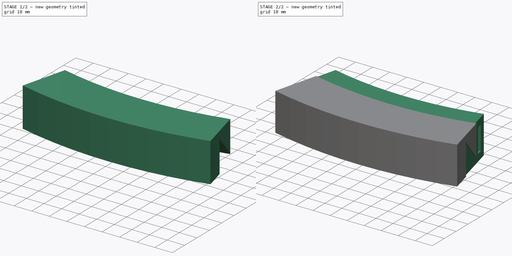
[diagram: build sequence overview — one tinted view per stage of 2, left to right]
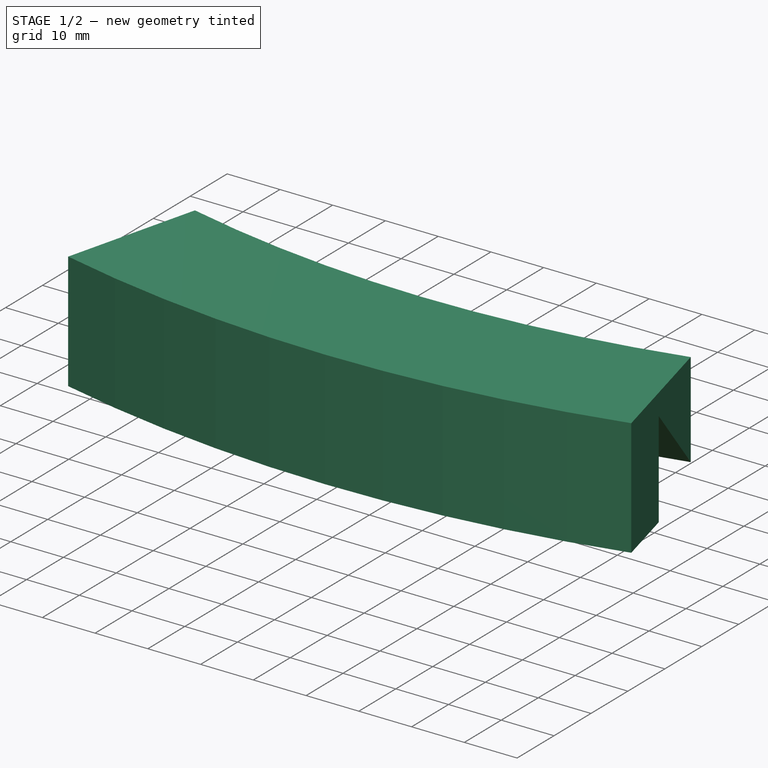
[diagram: stage 1 of 2 — iso view after this stage's code; geometry added in this stage tinted green]
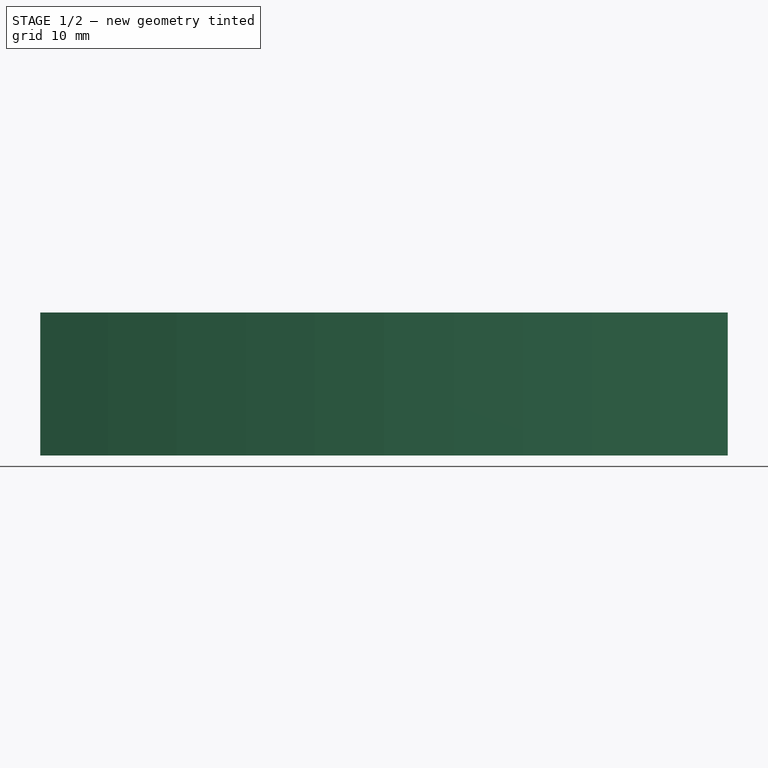
[diagram: stage 1 of 2 — front view after this stage's code; geometry added in this stage tinted green]
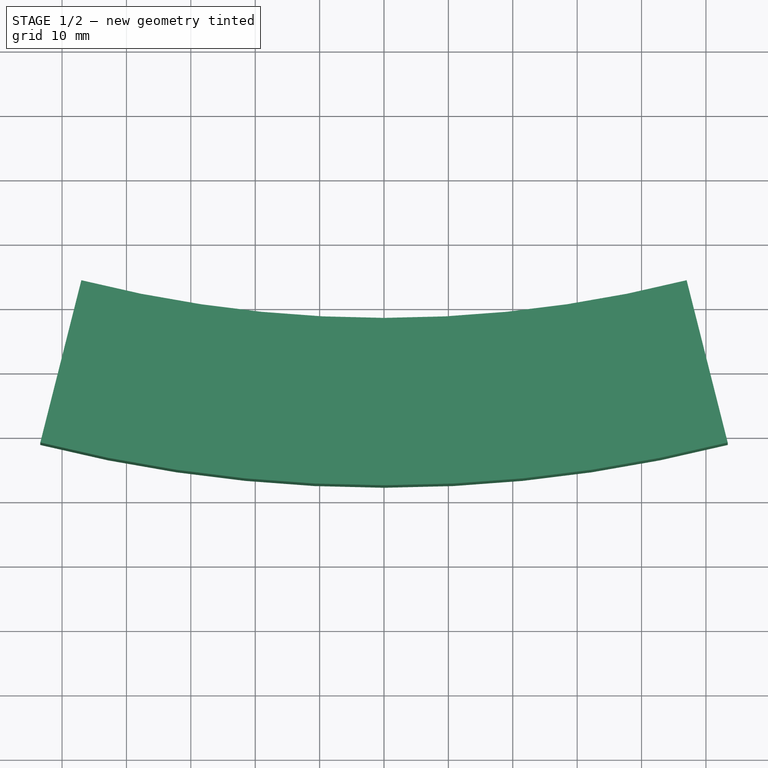
[diagram: stage 1 of 2 — top view after this stage's code; geometry added in this stage tinted green]
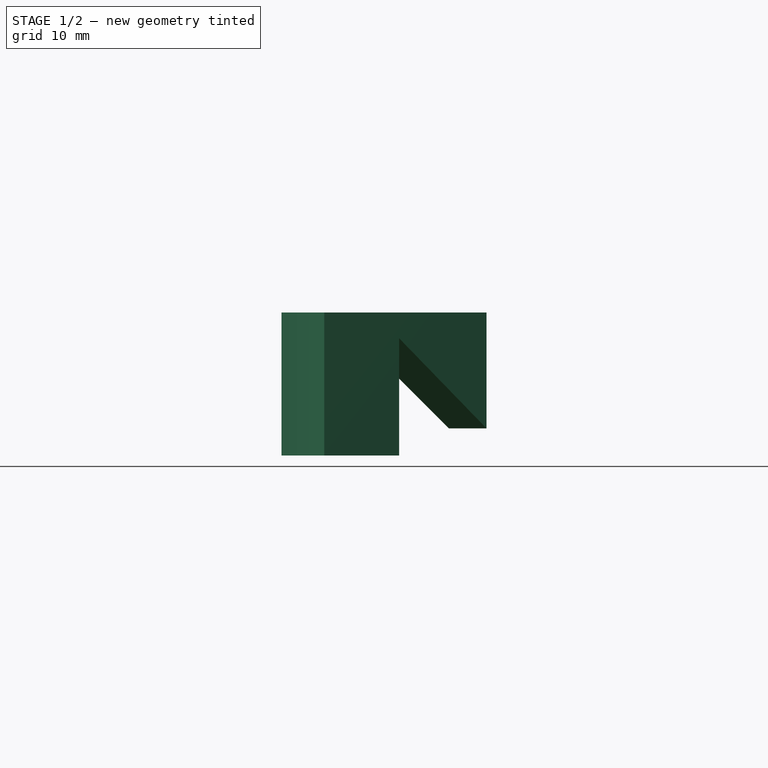
[diagram: stage 1 of 2 — right view after this stage's code; geometry added in this stage tinted green]
FCSTD DOCUMENT  (FreeCAD 0.22R37841 (Git))
Label: v1
License: All rights reserved
LicenseURL: http://en.wikipedia.org/wiki/All_rights_reserved
objects: Sketcher::SketchObject×4, PartDesign::Revolution×2, PartDesign::Pocket×2, PartDesign::Body×2, Spreadsheet::Sheet×1
note: 14 computed .brp shape members not serialized (recipe doc carries the construction recipe); baked Part::Feature solids carry a one-line shape summary decoded from their .brp

FEATURE [PartDesign::Body] Body  label="ChairMount"
  AllowCompound = false
  Group = -> [Sketch,Sketch001,Revolution,Pocket]
  Origin = -> Origin
  Tip = -> Pocket
FEATURE [Sketcher::SketchObject] Sketch002  label="ExtMountRevSketch"
  AttachmentSupport = -> [YZ_Plane001]
  FullyConstrained = true
  MapMode = 5
  Placement = pos=(0,0,0) rot=(0.57735,0.57735,0.57735;2.0944rad)
  expr: Constraints[12] = <<$params>>.mount_base_rad_distance
  expr: Constraints[13] = <<$params>>.mount_thickness * 2 + <<$params>>.mount_tie_cut_width + <<$params>>.tol
  expr: Constraints[14] = <<$params>>.mount_cleat_size
  expr: Constraints[22] = <<$params>>.mount_thickness + <<$params>>.tol * 2
  expr: Constraints[24] = <<$params>>.mount_thickness
  expr: Constraints[25] = <<$params>>.mount_ext_thickness
  sketch-geometry (9):
    g0: LineSegment StartX=-205.7 StartY=18.2 StartZ=0 EndX=-191.7 EndY=4.2 EndZ=0
    g1: LineSegment StartX=-205.7 StartY=18.2 StartZ=0 EndX=-205.7 EndY=0 EndZ=0
    g2: LineSegment StartX=-205.7 StartY=0 StartZ=0 EndX=-217.7 EndY=0 EndZ=0
    g3: LineSegment StartX=-217.7 StartY=0 StartZ=0 EndX=-217.7 EndY=22.2 EndZ=0
    g4: LineSegment StartX=-217.7 StartY=22.2 StartZ=0 EndX=-191.7 EndY=22.2 EndZ=0
    g5: LineSegment StartX=-205.7 StartY=18.2 StartZ=0 EndX=-191.7 EndY=18.2 EndZ=0
    g6: LineSegment StartX=0 StartY=0 StartZ=0 EndX=-180 EndY=0 EndZ=0
    g7: LineSegment StartX=-191.7 StartY=4.2 StartZ=0 EndX=-191.7 EndY=18.2 EndZ=0
    g8: LineSegment StartX=-191.7 StartY=22.2 StartZ=0 EndX=-191.7 EndY=18.2 EndZ=0
  constraints (26):
    c: Coincident(g1,g0)
    c: Vertical(g1)
    c: Coincident(g2,g1)
    c: Horizontal(g2)
    c: Coincident(g3,g2)
    c: Vertical(g3)
    c: Coincident(g4,g3)
    c: Horizontal(g4)
    c: Coincident(g5,g0)
    c: Horizontal(g5)
    c: Coincident(g6,g-1)
    c: Horizontal(g6)
    c: DistanceX(g6,g6) = 180
    c: DistanceX(g0,g6) = 11.7
    c: DistanceX(g5,g5) = 14
    c: Coincident(g7,g0)
    c: Coincident(g7,g5)
    c: Vertical(g7)
    c: Coincident(g8,g4)
    c: Coincident(g8,g5)
    c: Vertical(g8)
    c: Equal(g5,g7)
    c: DistanceY(g-1,g0) = 4.2
    c: PointOnObject(g1,g-1)
    c: DistanceY(g8,g8) = 4
    c: DistanceX(g2,g2) = 12
FEATURE [PartDesign::Revolution] Revolution001  label="ExtMountRev"
  Angle = 360
  Angle2 = 60
  Axis = (0,0,1)
  Base = (0,0,0)
  Placement = pos=(0,0,0) rot=(1,1,1;2.0944rad)
  Profile = -> Sketch002
  ReferenceAxis = -> Sketch002 [V_Axis]
  Suppressed = false
  Type = 0
FEATURE [Sketcher::SketchObject] Sketch003  label="ExtMountCutSketch"
  AttachmentSupport = -> [XY_Plane001]
  ExternalGeometry = -> [Sketch002]
  FullyConstrained = true
  MapMode = 5
  expr: Constraints[14] = <<$params>>.mount_ext_width
  sketch-geometry (8):
    g0: ArcOfCircle CenterX=0 CenterY=0 CenterZ=0 NormalX=0 NormalY=0 NormalZ=1 AngleXU=0 Radius=191.7 StartAngle=4.96009 EndAngle=10.7479
    g1: ArcOfCircle CenterX=0 CenterY=0 CenterZ=0 NormalX=0 NormalY=0 NormalZ=1 AngleXU=0 Radius=217.7 StartAngle=4.96009 EndAngle=10.7479
    g2: LineSegment StartX=0 StartY=0 StartZ=0 EndX=-53.3745 EndY=-211.056 EndZ=0
    g3: LineSegment StartX=0 StartY=0 StartZ=0 EndX=53.3745 EndY=-211.056 EndZ=0
    g4: GeomPoint X=-47 Y=-185.849 Z=0
    g5: GeomPoint X=47 Y=-185.849 Z=0
    g6: LineSegment StartX=47 StartY=-185.849 StartZ=0 EndX=0 EndY=-185.849 EndZ=0
    g7: LineSegment StartX=0 StartY=-185.849 StartZ=0 EndX=-47 EndY=-185.849 EndZ=0
  constraints (19):
    c: Coincident(g0,g-1)
    c: Coincident(g1,g0)
    c: PointOnObject(g-3,g0)
    c: PointOnObject(g-4,g1)
    c: Coincident(g2,g0)
    c: Coincident(g3,g0)
    c: PointOnObject(g5,g3)
    c: PointOnObject(g4,g2)
    c: Coincident(g6,g5)
    c: PointOnObject(g6,g-2)
    c: Horizontal(g6)
    c: Coincident(g7,g6)
    c: Coincident(g7,g4)
    c: Horizontal(g7)
    c: DistanceX(g4,g5) = 94
    c: Coincident(g0,g7)
    c: Coincident(g0,g6)
    c: Coincident(g1,g2)
    c: Coincident(g1,g3)
FEATURE [PartDesign::Pocket] Pocket001  label="ExtMountCut"
  BaseFeature = -> Revolution001
  Direction = (0,0,-1)
  Length = 5
  Length2 = 5
  Placement = pos=(0,0,0) rot=(1,1,1;2.0944rad)
  Profile = -> Sketch003
  ReferenceAxis = -> Sketch003 [N_Axis]
  Reversed = true
  Suppressed = false
  Type = 1
FEATURE [PartDesign::Body] Body001  label="ExtMount"
  AllowCompound = false
  Group = -> [Sketch002,Revolution001,Sketch003,Pocket001]
  Origin = -> Origin001
  Tip = -> Pocket001
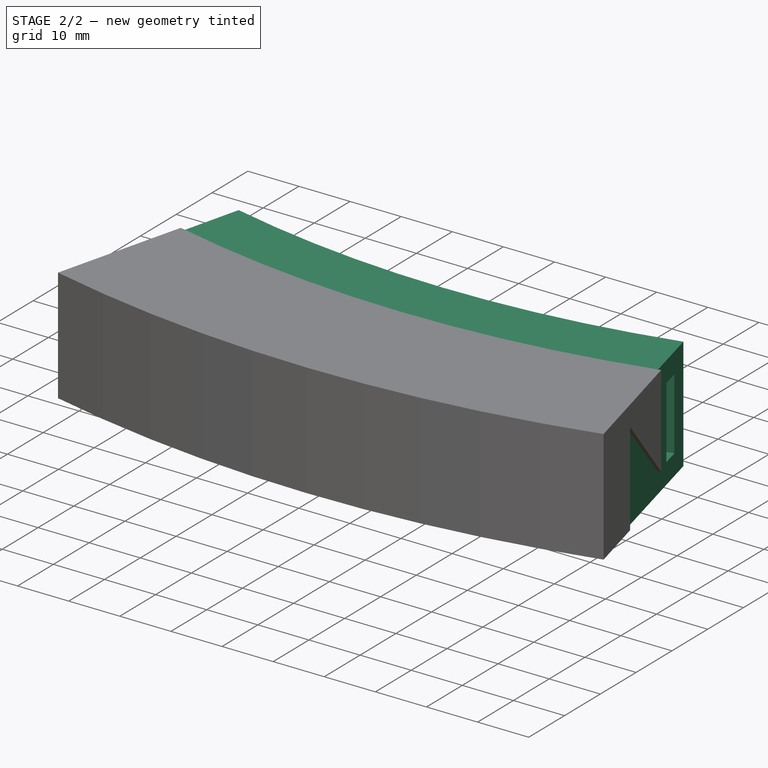
[diagram: stage 2 of 2 — iso view after this stage's code; geometry added in this stage tinted green]
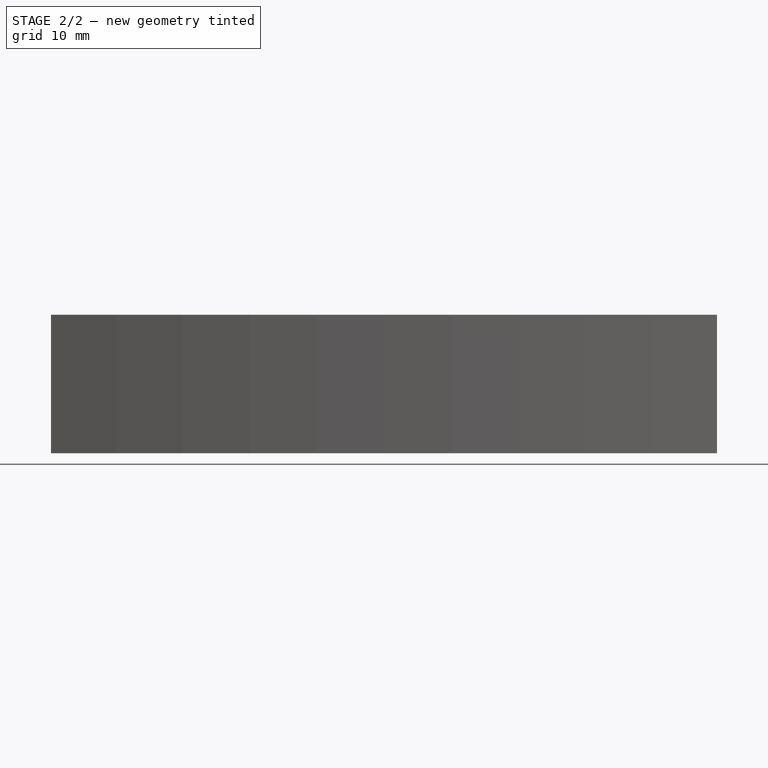
[diagram: stage 2 of 2 — front view after this stage's code; geometry added in this stage tinted green]
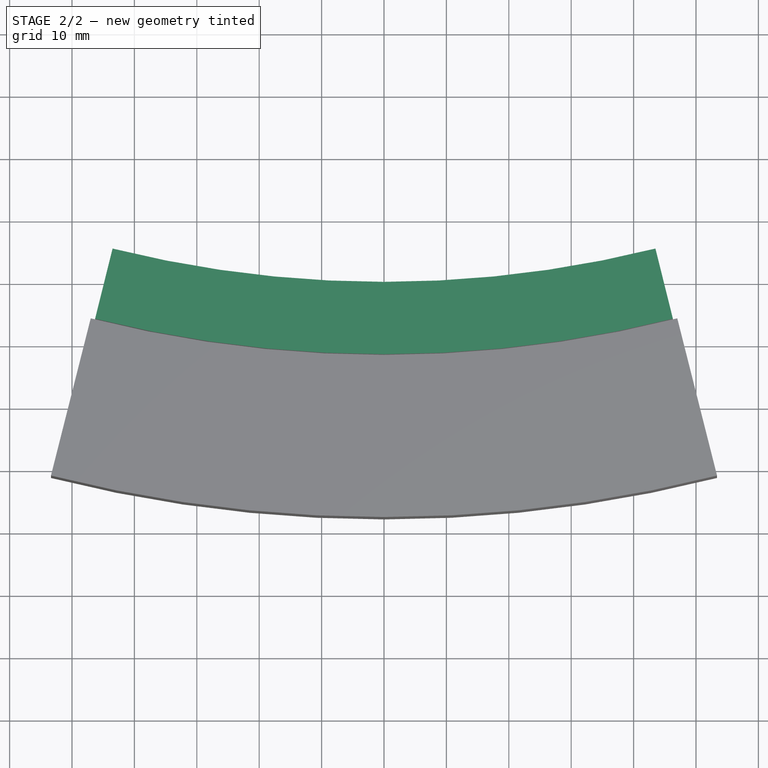
[diagram: stage 2 of 2 — top view after this stage's code; geometry added in this stage tinted green]
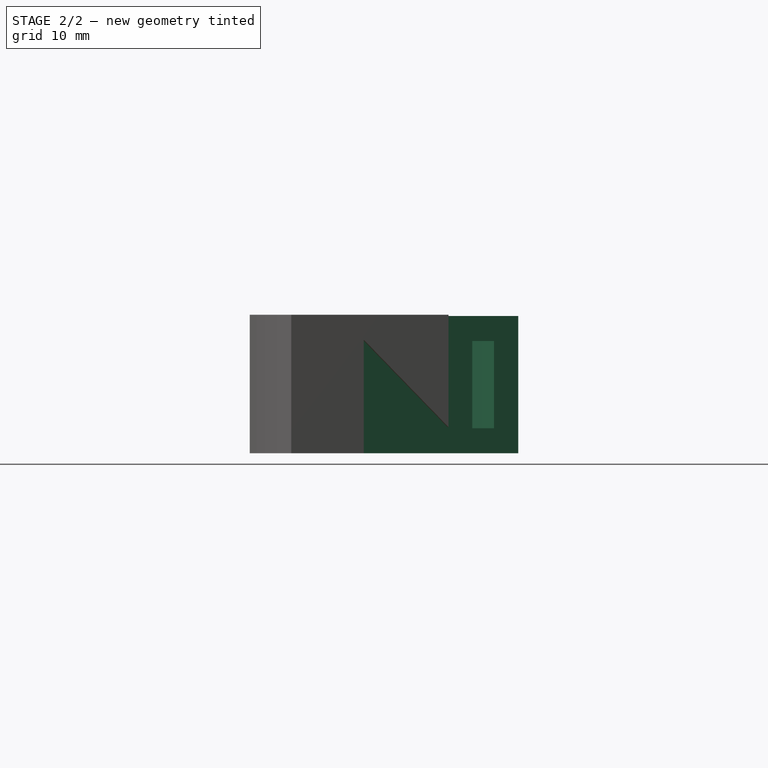
[diagram: stage 2 of 2 — right view after this stage's code; geometry added in this stage tinted green]
FEATURE [Spreadsheet::Sheet] Spreadsheet  label="$params"
  cells = A1='name; B1='value; C1='notes; A2='tol; B2(tol)=0.1; A3='mount_width; B3(mount_width)=87; A4='mount_thickness; B4(mount_thickness)=4; A5='mount_cleat_size; B5(mount_cleat_size)=14; A7='mount_tie_cut_width; B7(mount_tie_cut_width)=3.6; A8='mount_tie_cut_height; B8(mount_tie_cut_height)=14; A9='mount_base_rad_distance; B9(mount_base_rad_distance)=180; A11='mount_ext_width; B11(mount_ext_width)=94; A12='mount_ext_thickness; B12(mount_ext_thickness)=12
FEATURE [Sketcher::SketchObject] Sketch  label="ChairMountRevSketch"
  AttachmentSupport = -> [YZ_Plane]
  FullyConstrained = true
  MapMode = 5
  Placement = pos=(0,0,0) rot=(0.57735,0.57735,0.57735;2.0944rad)
  expr: Constraints[12] = <<$params>>.mount_cleat_size
  expr: Constraints[15] = <<$params>>.mount_thickness
  expr: Constraints[24] = <<$params>>.mount_tie_cut_width
  expr: Constraints[25] = <<$params>>.mount_tie_cut_height
  expr: Constraints[39] = <<$params>>.mount_thickness
  expr: Constraints[40] = <<$params>>.mount_base_rad_distance
  sketch-geometry (18):
    g0: LineSegment StartX=-205.6 StartY=0 StartZ=0 EndX=-205.6 EndY=22 EndZ=0
    g1: LineSegment StartX=-205.6 StartY=22 StartZ=0 EndX=-191.6 EndY=8 EndZ=0
    g2: LineSegment StartX=-191.6 StartY=8 StartZ=0 EndX=-191.6 EndY=22 EndZ=0
    g3: LineSegment StartX=-191.6 StartY=22 StartZ=0 EndX=-180 EndY=22 EndZ=0
    g4: LineSegment StartX=-205.6 StartY=22 StartZ=0 EndX=-191.6 EndY=22 EndZ=0
    g5: LineSegment StartX=-191.6 StartY=8 StartZ=0 EndX=-205.6 EndY=8 EndZ=0
    g6: LineSegment StartX=-180 StartY=4 StartZ=0 EndX=-180 EndY=0 EndZ=0
    g7: LineSegment StartX=-180 StartY=0 StartZ=0 EndX=-205.6 EndY=0 EndZ=0
    g8: LineSegment StartX=-187.6 StartY=18 StartZ=0 EndX=-187.6 EndY=4 EndZ=0
    g9: LineSegment StartX=-187.6 StartY=4 StartZ=0 EndX=-184 EndY=4 EndZ=0
    g10: LineSegment StartX=-184 StartY=4 StartZ=0 EndX=-184 EndY=18 EndZ=0
    g11: LineSegment StartX=-184 StartY=18 StartZ=0 EndX=-187.6 EndY=18 EndZ=0
    g12: LineSegment StartX=-187.6 StartY=18 StartZ=0 EndX=-187.6 EndY=22 EndZ=0
    g13: LineSegment StartX=-187.6 StartY=18 StartZ=0 EndX=-191.6 EndY=18 EndZ=0
    g14: LineSegment StartX=-184 StartY=18 StartZ=0 EndX=-184 EndY=22 EndZ=0
    g15: LineSegment StartX=-184 StartY=18 StartZ=0 EndX=-188 EndY=18 EndZ=0
    g16: LineSegment StartX=-180 StartY=22 StartZ=0 EndX=-180 EndY=4 EndZ=0
    g17: LineSegment StartX=-184 StartY=18 StartZ=0 EndX=-180 EndY=18 EndZ=0
  constraints (53):
    c: PointOnObject(g0,g-1)
    c: Vertical(g0)
    c: Coincident(g1,g0)
    c: Coincident(g2,g1)
    c: Vertical(g2)
    c: Horizontal(g3)
    c: Angle(g2,g1) = 0.785398
    c: Coincident(g4,g0)
    c: Horizontal(g4)
    c: Coincident(g5,g1)
    c: PointOnObject(g5,g0)
    c: Horizontal(g5)
    c: DistanceX(g5,g5) = 14
    c: Vertical(g6)
    c: Coincident(g7,g0)
    c: DistanceY(g6,g6) = 4
    c: Coincident(g8,g9)
    c: Coincident(g9,g10)
    c: Coincident(g10,g11)
    c: Coincident(g11,g8)
    c: Vertical(g8)
    c: Vertical(g10)
    c: Horizontal(g9)
    c: Horizontal(g11)
    c: DistanceX(g11,g11) = 3.6
    c: DistanceY(g10,g10) = 14
    c: Coincident(g12,g8)
    c: PointOnObject(g12,g3)
    c: Vertical(g12)
    c: Coincident(g13,g8)
    c: PointOnObject(g13,g2)
    c: Horizontal(g13)
    c: Coincident(g14,g10)
    c: PointOnObject(g14,g3)
    c: Vertical(g14)
    c: Coincident(g15,g10)
    c: Horizontal(g15)
    c: Equal(g15,g14)
    c: Equal(g12,g13)
    c: DistanceX(g13,g13) = 4
    c: DistanceX(g6,g-1) = 180
    c: Coincident(g6,g7)
    c: PointOnObject(g6,g-1)
    c: Coincident(g16,g3)
    c: Vertical(g16)
    c: Coincident(g17,g10)
    c: PointOnObject(g17,g16)
    c: Horizontal(g17)
    c: Equal(g17,g14)
    c: Coincident(g6,g16)
    c: Coincident(g2,g3)
    c: Coincident(g2,g4)
    c: Horizontal(g9,g6)
FEATURE [Sketcher::SketchObject] Sketch001  label="ChairMountCutSketch"
  AttachmentSupport = -> [XY_Plane]
  ExternalGeometry = -> [Sketch]
  FullyConstrained = true
  MapMode = 5
  expr: Constraints[14] = <<$params>>.mount_width
  sketch-geometry (9):
    g0: ArcOfCircle CenterX=0 CenterY=0 CenterZ=0 NormalX=0 NormalY=0 NormalZ=1 AngleXU=0 Radius=205.6 StartAngle=4.95647 EndAngle=10.7515
    g1: LineSegment StartX=0 StartY=0 StartZ=0 EndX=-49.6867 EndY=-199.506 EndZ=0
    g2: LineSegment StartX=0 StartY=0 StartZ=0 EndX=49.6867 EndY=-199.506 EndZ=0
    g3: Circle CenterX=0 CenterY=0 CenterZ=0 NormalX=0 NormalY=0 NormalZ=1 AngleXU=0 Radius=180
    g4: GeomPoint X=-43.5 Y=-174.665 Z=0
    g5: GeomPoint X=43.5 Y=-174.665 Z=0
    g6: LineSegment StartX=0 StartY=-174.665 StartZ=0 EndX=-43.5 EndY=-174.665 EndZ=0
    g7: LineSegment StartX=0 StartY=-174.665 StartZ=0 EndX=43.5 EndY=-174.665 EndZ=0
    g8: ArcOfCircle CenterX=4.1e-15 CenterY=-1.18047e-08 CenterZ=0 NormalX=0 NormalY=0 NormalZ=1 AngleXU=0 Radius=205.6 StartAngle=4.46831 EndAngle=4.95647
  constraints (21):
    c: Coincident(g0,g-1)
    c: Coincident(g1,g0)
    c: Coincident(g2,g0)
    c: Coincident(g3,g0)
    c: PointOnObject(g4,g3)
    c: PointOnObject(g5,g3)
    c: PointOnObject(g4,g1)
    c: PointOnObject(g5,g2)
    c: PointOnObject(g6,g-2)
    c: Coincident(g6,g4)
    c: Coincident(g7,g6)
    c: Coincident(g7,g5)
    c: Horizontal(g7)
    c: Horizontal(g6)
    c: DistanceX(g4,g5) = 87
    c: Coincident(g0,g1)
    c: Coincident(g0,g2)
    c: PointOnObject(g-4,g3)
    c: Coincident(g0,g8)
    c: PointOnObject(g-5,g8)
    c: Tangent(g8,g0) = -1.5708
FEATURE [PartDesign::Revolution] Revolution  label="ChairMountRev"
  Angle = 360
  Angle2 = 60
  Axis = (0,0,1)
  Base = (0,0,0)
  Placement = pos=(0,0,0) rot=(1,1,1;2.0944rad)
  Profile = -> Sketch
  ReferenceAxis = -> Sketch [V_Axis]
  Suppressed = false
  Type = 0
FEATURE [PartDesign::Pocket] Pocket  label="ChairMountCut"
  BaseFeature = -> Revolution
  Direction = (0,0,-1)
  Length = 5
  Length2 = 5
  Placement = pos=(0,0,0) rot=(1,1,1;2.0944rad)
  Profile = -> Sketch001
  ReferenceAxis = -> Sketch001 [N_Axis]
  Reversed = true
  Suppressed = false
  Type = 1
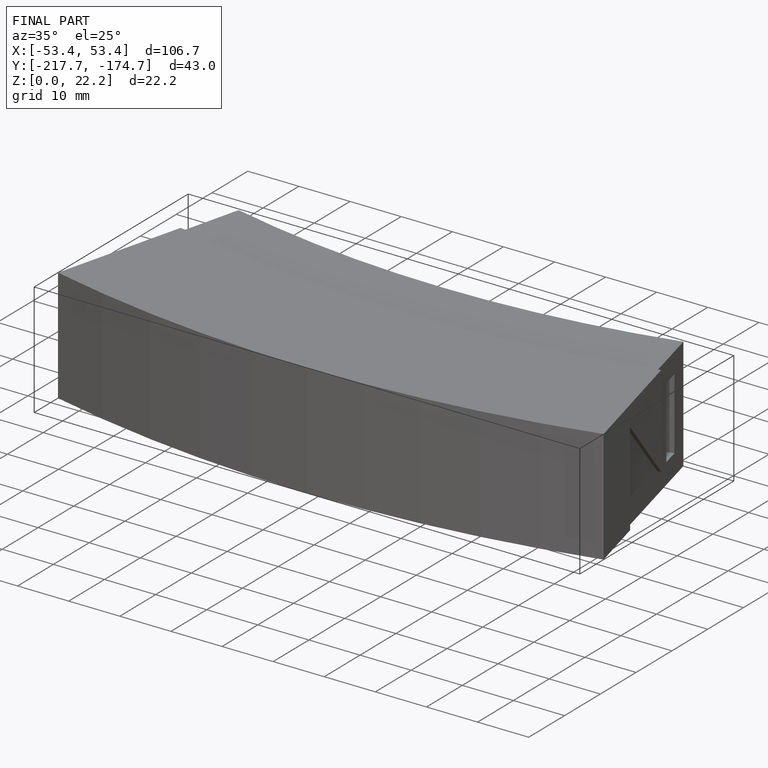
[diagram: finished part — iso view with bounding-box wireframe]
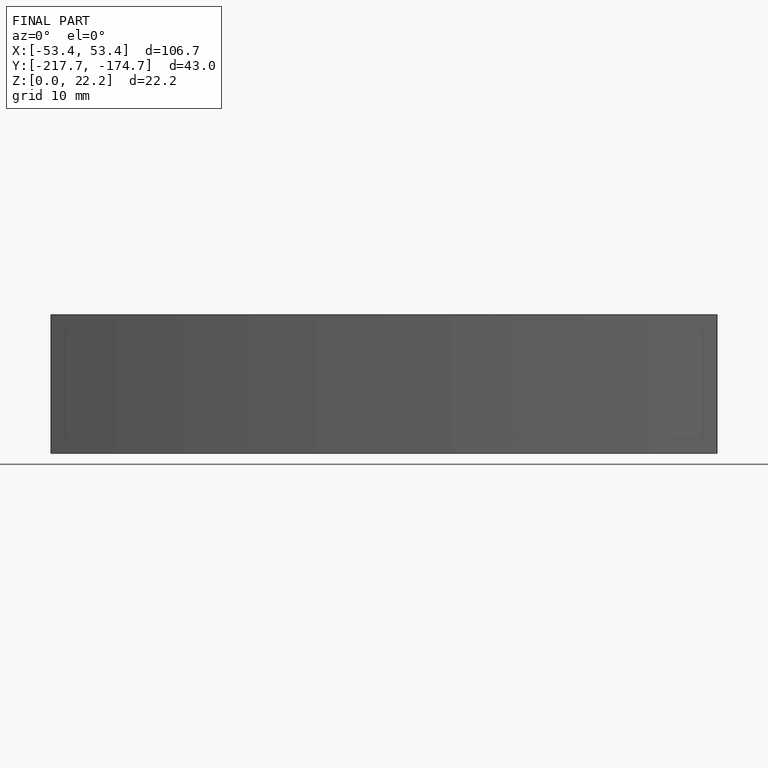
[diagram: finished part — front view with bounding-box wireframe]
